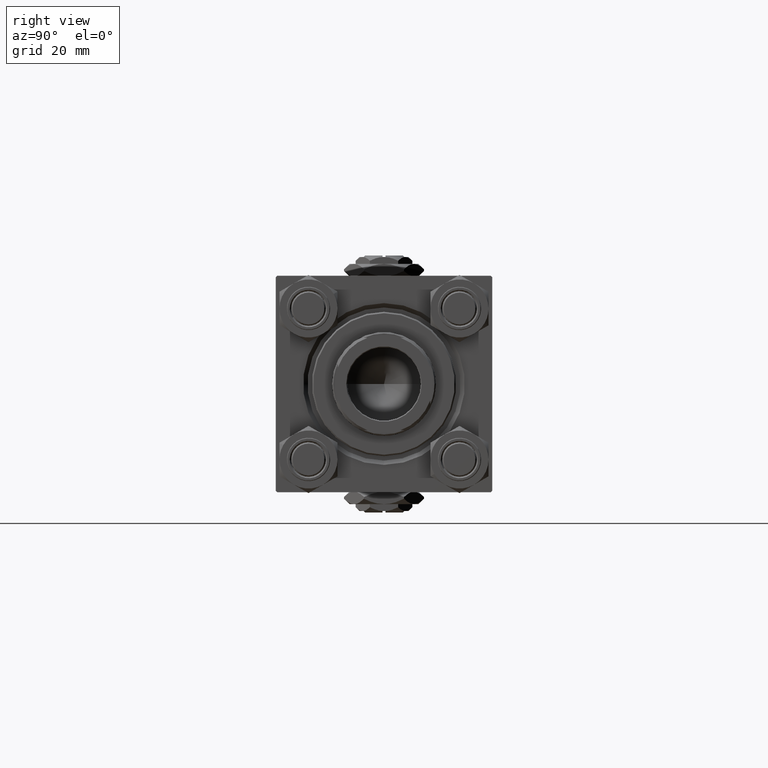
[diagram: clean part render]
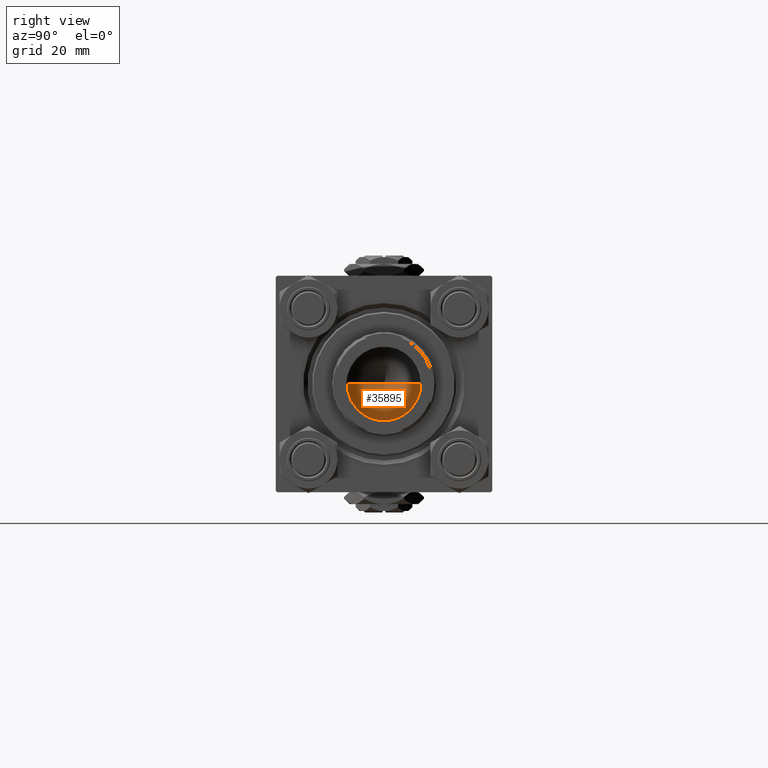
[diagram: same view with one face highlighted and labeled with its STEP entity id]
A machine part, right view. The second image highlights one B-rep face of the part: STEP entity #35895.
In plain terms, the highlighted conical surface has half-angle 59 deg.
Its self-contained STEP definition (entity closure, byte-faithful):
#2516 = VERTEX_POINT ( 'NONE', #31338 ) ;
#7040 = EDGE_CURVE ( 'NONE', #2516, #50417, #17639, .T. ) ;
#9019 = ORIENTED_EDGE ( 'NONE', *, *, #24968, .F. ) ;
#12677 = DIRECTION ( 'NONE',  ( 0.8571673007021117785, 0.000000000000000000, 0.5150380749100550437 ) ) ;
#13234 = DIRECTION ( 'NONE',  ( -0.000000000000000000, -0.000000000000000000, 1.000000000000000000 ) ) ;
#13340 = ORIENTED_EDGE ( 'NONE', *, *, #37189, .T. ) ;
#15592 = FACE_OUTER_BOUND ( 'NONE', #24435, .T. ) ;
#17639 = LINE ( 'NONE', #48533, #19085 ) ;
#19085 = VECTOR ( 'NONE', #12677, 1000.000000000000000 ) ;
#23618 = CARTESIAN_POINT ( 'NONE',  ( -12.74999999999998934, 1.561424668912873928E-15, 97.00000000000001421 ) ) ;
#24435 = EDGE_LOOP ( 'NONE', ( #9019, #32914, #13340 ) ) ;
#24968 = EDGE_CURVE ( 'NONE', #2516, #36861, #51083, .T. ) ;
#26630 = CARTESIAN_POINT ( 'NONE',  ( -12.74999999999998934, 1.561424668912873928E-15, 97.00000000000001421 ) ) ;
#27743 = VECTOR ( 'NONE', #31470, 1000.000000000000000 ) ;
#30973 = CARTESIAN_POINT ( 'NONE',  ( 12.74999999999998934, 0.000000000000000000, 97.00000000000001421 ) ) ;
#31338 = CARTESIAN_POINT ( 'NONE',  ( -1.410643066818227497E-14, 0.000000000000000000, 89.33902710739862130 ) ) ;
#31470 = DIRECTION ( 'NONE',  ( -0.8571673007021117785, 1.049727191138617956E-16, 0.5150380749100550437 ) ) ;
#31569 = CARTESIAN_POINT ( 'NONE',  ( 0.000000000000000000, 0.000000000000000000, 97.00000000000001421 ) ) ;
#32914 = ORIENTED_EDGE ( 'NONE', *, *, #7040, .T. ) ;
#33894 = AXIS2_PLACEMENT_3D ( 'NONE', #41516, #13234, #45177 ) ;
#34721 = CONICAL_SURFACE ( 'NONE', #36358, 12.74999999999998934, 1.029744258676653423 ) ;
#35242 = DIRECTION ( 'NONE',  ( -0.000000000000000000, -0.000000000000000000, 1.000000000000000000 ) ) ;
#35895 = ADVANCED_FACE ( 'NONE', ( #15592 ), #34721, .F. ) ;
#36358 = AXIS2_PLACEMENT_3D ( 'NONE', #31569, #35242, #51705 ) ;
#36861 = VERTEX_POINT ( 'NONE', #26630 ) ;
#37189 = EDGE_CURVE ( 'NONE', #50417, #36861, #40599, .T. ) ;
#40599 = CIRCLE ( 'NONE', #33894, 12.74999999999998934 ) ;
#41516 = CARTESIAN_POINT ( 'NONE',  ( 0.000000000000000000, 0.000000000000000000, 97.00000000000001421 ) ) ;
#45177 = DIRECTION ( 'NONE',  ( 1.000000000000000000, 0.000000000000000000, 0.000000000000000000 ) ) ;
#48533 = CARTESIAN_POINT ( 'NONE',  ( 12.74999999999998934, 0.000000000000000000, 97.00000000000001421 ) ) ;
#50417 = VERTEX_POINT ( 'NONE', #30973 ) ;
#51083 = LINE ( 'NONE', #23618, #27743 ) ;
#51705 = DIRECTION ( 'NONE',  ( 1.000000000000000000, 0.000000000000000000, 0.000000000000000000 ) ) ;